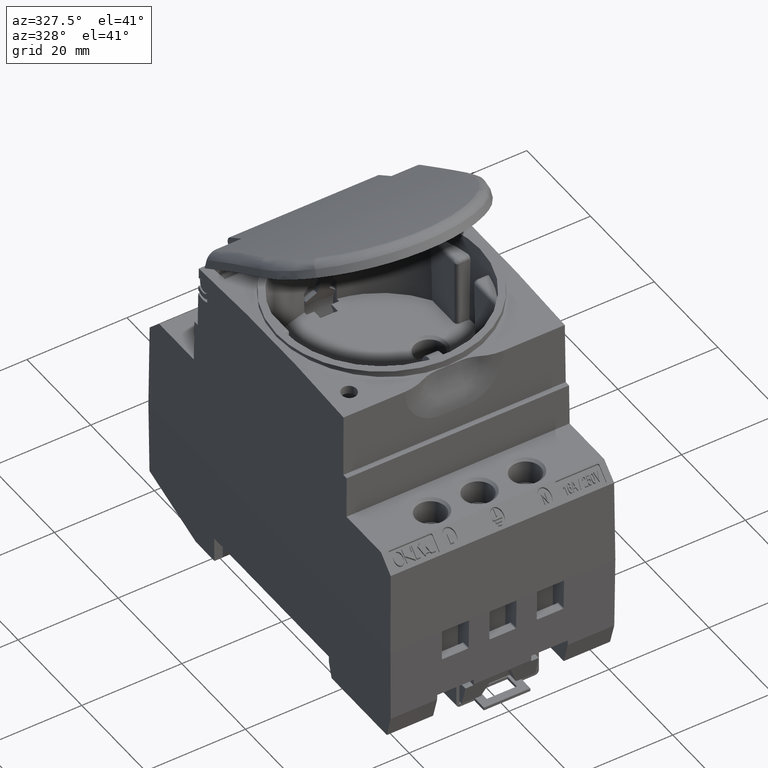
[diagram: clean part render]
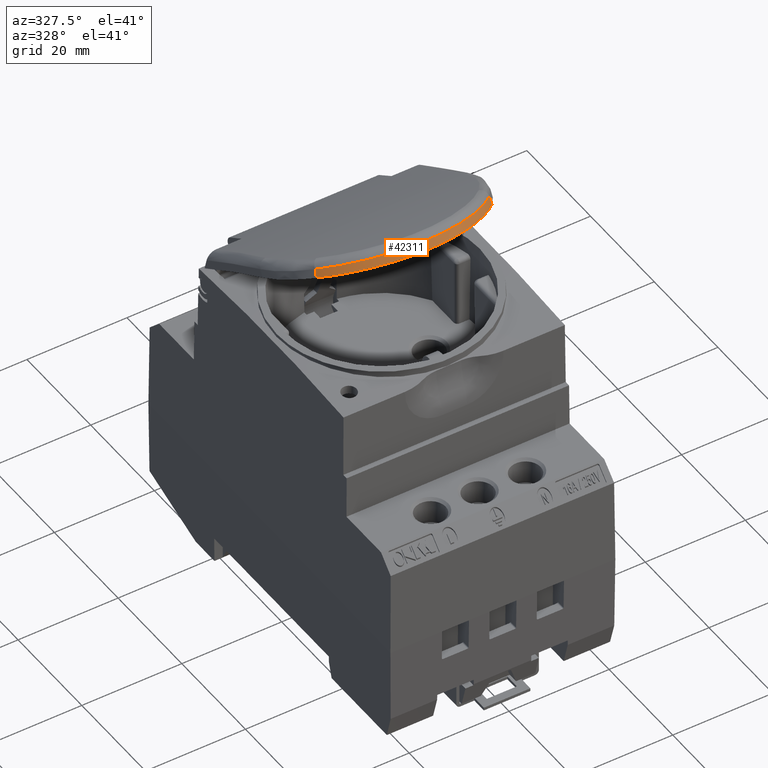
[diagram: same view with one face highlighted and labeled with its STEP entity id]
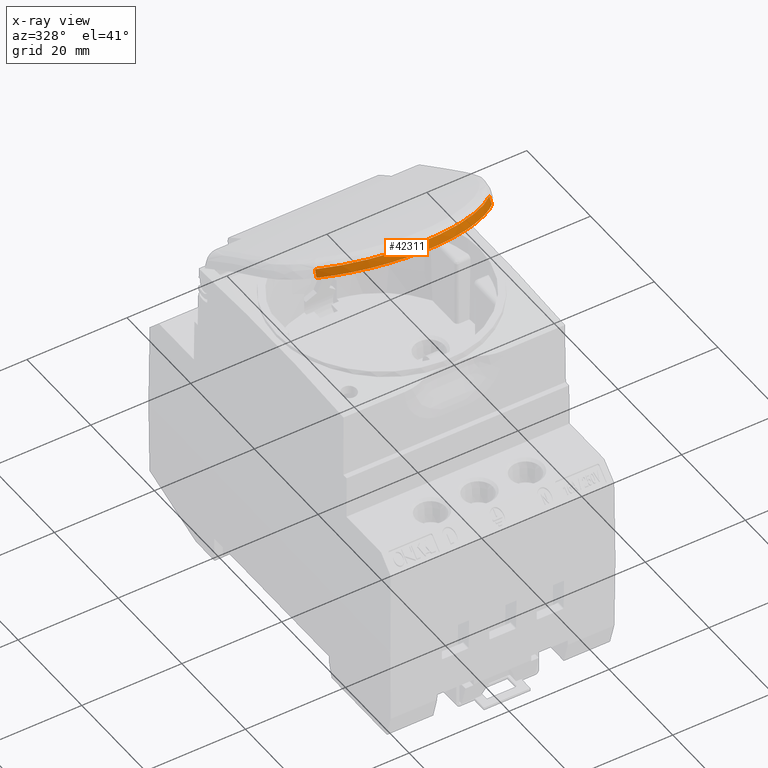
[diagram: x-ray of the same camera — body ghosted, the highlighted face saturated]
A machine part, auxiliary view. The second image highlights one B-rep face of the part: STEP entity #42311.
The next image is the same camera in x-ray: the body ghosted, the highlighted face saturated — about 0% of this face is hidden behind the body in this view.
In plain terms, the highlighted cylindrical surface (partial cylindrical patch) has radius 22.158 mm, axis along (-0, -0.5, -0.866).
Its self-contained STEP definition (entity closure, byte-faithful):
#7675 = CARTESIAN_POINT ( 'NONE',  ( -17.43839991281403100, -6.406244868799487500, 35.04896011352278200 ) ) ;
#7678 = CARTESIAN_POINT ( 'NONE',  ( -17.47729985172660200, -6.619162373726648100, 34.58093211664670700 ) ) ;
#7690 = CARTESIAN_POINT ( 'NONE',  ( -17.55446290469034700, -7.044567572080076400, 33.64462797110912400 ) ) ;
#7722 = CARTESIAN_POINT ( 'NONE',  ( -17.51598798557933600, -6.831936084455147600, 34.11282110015147100 ) ) ;
#7790 = CARTESIAN_POINT ( 'NONE',  ( 17.55446290469020800, -7.044567572080229200, 33.64462797110920200 ) ) ;
#7811 = CARTESIAN_POINT ( 'NONE',  ( 17.47738107177864100, -6.621013908360208900, 34.57751794991350600 ) ) ;
#7820 = CARTESIAN_POINT ( 'NONE',  ( 17.43839991281475600, -6.406244868798709500, 35.04896011352235500 ) ) ;
#7835 = CARTESIAN_POINT ( 'NONE',  ( 17.51606838477248800, -6.833784626242709800, 34.10941056595730500 ) ) ;
#7841 = CARTESIAN_POINT ( 'NONE',  ( -14.60505939288947600, -9.846250748564902000, 35.07944971855751200 ) ) ;
#7843 = CARTESIAN_POINT ( 'NONE',  ( -14.21609044970418100, -10.14299974661740400, 35.22916890223559200 ) ) ;
#7844 = CARTESIAN_POINT ( 'NONE',  ( -14.01559191217607200, -10.29111076207343200, 35.30376106467055300 ) ) ;
#7845 = CARTESIAN_POINT ( 'NONE',  ( -10.41475924870612800, -12.44001523457868400, 36.37484680628377000 ) ) ;
#7847 = CARTESIAN_POINT ( 'NONE',  ( -15.89248085834182900, -8.753177875136149300, 34.52400741919677800 ) ) ;
#7848 = CARTESIAN_POINT ( 'NONE',  ( -14.03270803413653100, -10.27859455255903100, 35.29746022018941400 ) ) ;
#7850 = CARTESIAN_POINT ( 'NONE',  ( -14.01545792126314500, -10.29120836656773000, 35.30381019480192600 ) ) ;
#7851 = CARTESIAN_POINT ( 'NONE',  ( -10.16995923771010400, -12.55485724968119100, 36.43144203341206100 ) ) ;
#7852 = CARTESIAN_POINT ( 'NONE',  ( -10.04862389879820000, -12.61091266147393100, 36.45905319183766800 ) ) ;
#7856 = CARTESIAN_POINT ( 'NONE',  ( -16.32781108973706500, -8.342582989788567700, 34.31394311986873200 ) ) ;
#7857 = CARTESIAN_POINT ( 'NONE',  ( -15.90913919849195100, -8.737870338265663500, 34.51619026455964700 ) ) ;
#7858 = CARTESIAN_POINT ( 'NONE',  ( -15.89748912309146400, -8.748578709424730700, 34.52165885517015200 ) ) ;
#7859 = CARTESIAN_POINT ( 'NONE',  ( -14.01831055558528000, -10.28912380030868300, 35.30276081490675500 ) ) ;
#7860 = CARTESIAN_POINT ( 'NONE',  ( -12.50390702947358800, -11.32089219309065900, 35.82025973054375400 ) ) ;
#7861 = CARTESIAN_POINT ( 'NONE',  ( -11.43466783285035500, -11.92394323018314300, 36.11980673805706500 ) ) ;
#7862 = CARTESIAN_POINT ( 'NONE',  ( -17.13332737876687900, -7.521237604279781100, 33.89151154930793600 ) ) ;
#7863 = CARTESIAN_POINT ( 'NONE',  ( -9.839668752446650400, -12.70496796308064400, 36.50535154944681400 ) ) ;
#7864 = CARTESIAN_POINT ( 'NONE',  ( -9.805129519050174400, -12.72031283790986400, 36.51290285846702200 ) ) ;
#7865 = CARTESIAN_POINT ( 'NONE',  ( -9.776960905406166800, -12.73278601579450100, 36.51904058547260200 ) ) ;
#7866 = CARTESIAN_POINT ( 'NONE',  ( -8.965808476128046300, -13.09114845452755700, 36.69537371387826100 ) ) ;
#7867 = CARTESIAN_POINT ( 'NONE',  ( -8.160827299685042400, -13.39257958438998500, 36.84293224038502500 ) ) ;
#7868 = CARTESIAN_POINT ( 'NONE',  ( -14.09588095743675300, -10.23221549610505000, 35.27410916602070000 ) ) ;
#7870 = CARTESIAN_POINT ( 'NONE',  ( -16.71960146736032000, -7.952884386220907800, 34.11384890289247800 ) ) ;
#7875 = CARTESIAN_POINT ( 'NONE',  ( -14.46272386213601600, -9.956349068953624500, 35.13504459890894800 ) ) ;
#7876 = CARTESIAN_POINT ( 'NONE',  ( -14.13486550690533700, -10.20337996762251900, 35.25958650380332000 ) ) ;
#7877 = CARTESIAN_POINT ( 'NONE',  ( -13.25137174261349800, -10.84928420682836700, 35.58474398289928300 ) ) ;
#7878 = CARTESIAN_POINT ( 'NONE',  ( -16.57027483728104800, -8.104567538970421500, 34.19183936376934700 ) ) ;
#7879 = CARTESIAN_POINT ( 'NONE',  ( -16.20195918762597000, -8.464210126244104500, 34.37627262653876400 ) ) ;
#7880 = CARTESIAN_POINT ( 'NONE',  ( -10.58079974088486500, -12.35981252827774100, 36.33528623818883600 ) ) ;
#7881 = CARTESIAN_POINT ( 'NONE',  ( -9.908993989031962700, -12.67399581381294400, 36.49010819427787300 ) ) ;
#7883 = CARTESIAN_POINT ( 'NONE',  ( -15.45823933971949100, -9.151428028624286200, 34.72735496080297000 ) ) ;
#7885 = CARTESIAN_POINT ( 'NONE',  ( -9.790353531346498900, -12.72685907940979900, 36.51612412618662500 ) ) ;
#7886 = CARTESIAN_POINT ( 'NONE',  ( -9.780508782044320200, -12.73121655781723200, 36.51826831090694700 ) ) ;
#7887 = CARTESIAN_POINT ( 'NONE',  ( -17.55446290469034700, -7.044567572080076400, 33.64462797110912400 ) ) ;
#7888 = CARTESIAN_POINT ( 'NONE',  ( -6.966958919358628300, -13.77164099697503200, 37.02786084338945500 ) ) ;
#7889 = CARTESIAN_POINT ( 'NONE',  ( -6.571238998412428400, -13.88582785648221400, 37.08344355903374600 ) ) ;
#7890 = CARTESIAN_POINT ( 'NONE',  ( -14.02260251018545900, -10.28598665840422700, 35.30118155212823400 ) ) ;
#7891 = CARTESIAN_POINT ( 'NONE',  ( -11.08680170418981700, -12.10758540645025000, 36.21071207495990100 ) ) ;
#7892 = CARTESIAN_POINT ( 'NONE',  ( -15.07908464429034900, -9.467788934410203100, 34.88792568324111400 ) ) ;
#7893 = CARTESIAN_POINT ( 'NONE',  ( -17.36356629126986900, -7.264795457441061400, 33.75886727834868100 ) ) ;
#7895 = CARTESIAN_POINT ( 'NONE',  ( -15.96698928048154500, -8.684512570889564700, 34.48893464875390400 ) ) ;
#7896 = CARTESIAN_POINT ( 'NONE',  ( -14.27458286813472000, -10.09913508984520700, 35.20706140030218700 ) ) ;
#7897 = CARTESIAN_POINT ( 'NONE',  ( -14.05328246088264300, -10.26352142027662500, 35.28987173255804100 ) ) ;
#7898 = CARTESIAN_POINT ( 'NONE',  ( -15.92657551314403500, -8.721825532903885400, 34.50799579389784800 ) ) ;
#7899 = CARTESIAN_POINT ( 'NONE',  ( -16.04673791663374500, -8.610391533906122800, 34.45105251690720400 ) ) ;
#7900 = CARTESIAN_POINT ( 'NONE',  ( -5.108017573426414200, -14.24301667906514400, 37.25692656923915500 ) ) ;
#7901 = CARTESIAN_POINT ( 'NONE',  ( -4.173182702742444400, -14.43901772336636700, 37.35199379285965900 ) ) ;
#7902 = CARTESIAN_POINT ( 'NONE',  ( 4.926327018914065500, -14.28112019524110300, 37.27540812595967200 ) ) ;
#7903 = CARTESIAN_POINT ( 'NONE',  ( 9.081962607297029400, -13.02870738830716500, 36.66449965122975400 ) ) ;
#7904 = CARTESIAN_POINT ( 'NONE',  ( 10.41581504556990500, -12.45001444409428600, 36.37989339431420200 ) ) ;
#7905 = CARTESIAN_POINT ( 'NONE',  ( 12.16869384615155900, -11.50946424756880400, 35.91392034432069400 ) ) ;
#7906 = CARTESIAN_POINT ( 'NONE',  ( 12.53499857837653800, -11.28971865860787600, 35.80443960922220700 ) ) ;
#7907 = CARTESIAN_POINT ( 'NONE',  ( 13.95763258338752000, -10.33335601181741100, 35.32502565666046500 ) ) ;
#7908 = CARTESIAN_POINT ( 'NONE',  ( 3.356565128413387700, -14.55448756951459500, 37.40786145784517200 ) ) ;
#7909 = CARTESIAN_POINT ( 'NONE',  ( 13.87416445245403900, -10.39375651205328000, 35.35541765922305800 ) ) ;
#7910 = CARTESIAN_POINT ( 'NONE',  ( 14.03982229712920200, -10.27338161343618900, 35.29483533686480000 ) ) ;
#7911 = CARTESIAN_POINT ( 'NONE',  ( 14.21711326287385400, -10.14345599411029900, 35.22941842919036800 ) ) ;
#7912 = CARTESIAN_POINT ( 'NONE',  ( 9.433719559434649700, -12.88176976309207700, 36.59231245519426800 ) ) ;
#7913 = CARTESIAN_POINT ( 'NONE',  ( 14.46577016068406800, -9.957917136168942900, 35.13597404296842800 ) ) ;
#7914 = CARTESIAN_POINT ( 'NONE',  ( 13.28169862085883300, -10.80635411942852800, 35.56262117710544900 ) ) ;
#7915 = CARTESIAN_POINT ( 'NONE',  ( 15.38778022759788800, -9.202430790135997200, 34.75298633025261100 ) ) ;
#7916 = CARTESIAN_POINT ( 'NONE',  ( 14.02029688532927700, -10.28767445134746700, 35.30203130279777200 ) ) ;
#7917 = CARTESIAN_POINT ( 'NONE',  ( 14.02925330977930700, -10.28112120936568100, 35.29873203964939400 ) ) ;
#7918 = CARTESIAN_POINT ( 'NONE',  ( 4.665076775693321100, -14.33377088564456700, 37.30093980247070100 ) ) ;
#7919 = CARTESIAN_POINT ( 'NONE',  ( 6.586603164158469200, -13.89304824701968300, 37.08709646835010400 ) ) ;
#7920 = CARTESIAN_POINT ( 'NONE',  ( -5.059796711842257500, -14.25327052198924500, 37.26190033537094600 ) ) ;
#7921 = CARTESIAN_POINT ( 'NONE',  ( 9.697603670119995900, -12.76772755615657800, 36.53623217932892700 ) ) ;
#7922 = CARTESIAN_POINT ( 'NONE',  ( -3.330758509613496200, -14.56904161522526800, 37.41491869429701500 ) ) ;
#7923 = CARTESIAN_POINT ( 'NONE',  ( 9.760435351473393700, -12.74008507141555300, 36.52263211509971100 ) ) ;
#7924 = CARTESIAN_POINT ( 'NONE',  ( 11.09587431401553900, -12.11595414837821000, 36.21520691230641400 ) ) ;
#7925 = CARTESIAN_POINT ( 'NONE',  ( 15.10760357851287900, -9.441032435600835300, 34.87425282465113700 ) ) ;
#7926 = CARTESIAN_POINT ( 'NONE',  ( 15.48475111322289900, -9.118481153371433800, 34.71027442970323300 ) ) ;
#7927 = CARTESIAN_POINT ( 'NONE',  ( 8.179258586454274400, -13.37462357486543500, 36.83404082816787900 ) ) ;
#7928 = CARTESIAN_POINT ( 'NONE',  ( 9.773001646379663400, -12.73453613832222700, 36.51990176150457000 ) ) ;
#7929 = CARTESIAN_POINT ( 'NONE',  ( -2.070221323588468600, -14.69776395290308300, 37.47712241059100100 ) ) ;
#7930 = CARTESIAN_POINT ( 'NONE',  ( 13.09385388491815600, -10.93085111252716500, 35.62498038465942300 ) ) ;
#7931 = CARTESIAN_POINT ( 'NONE',  ( 4.847973810528175800, -14.29719336537351100, 37.28320326274834400 ) ) ;
#7932 = CARTESIAN_POINT ( 'NONE',  ( 14.03522467031084100, -10.27674977725171800, 35.29653116157791700 ) ) ;
#7933 = CARTESIAN_POINT ( 'NONE',  ( 0.8464863165460172500, -14.78100401321412200, 37.51725608422434300 ) ) ;
#7934 = CARTESIAN_POINT ( 'NONE',  ( 4.299022901218013000, -14.40322563782860500, 37.33460782855672700 ) ) ;
#7935 = CARTESIAN_POINT ( 'NONE',  ( 1.681609925988718300, -14.73841957532141000, 37.49676907003619400 ) ) ;
#7936 = CARTESIAN_POINT ( 'NONE',  ( 15.63520598345916000, -8.985645852834931400, 34.64260615276581500 ) ) ;
#7937 = CARTESIAN_POINT ( 'NONE',  ( -5.689272078321725900, -14.11276704563082200, 37.19372663602365500 ) ) ;
#7938 = CARTESIAN_POINT ( 'NONE',  ( -1.650551224208642600, -14.72962883081239100, 37.49249863330425100 ) ) ;
#7939 = CARTESIAN_POINT ( 'NONE',  ( 5.800504971447627300, -14.09750502630329400, 37.18634583793779300 ) ) ;
#7940 = CARTESIAN_POINT ( 'NONE',  ( 13.56528597747441200, -10.61194512982409700, 35.46507006451378200 ) ) ;
#7941 = CARTESIAN_POINT ( 'NONE',  ( 3.984925432893765300, -14.45643568966255900, 37.36038374441353900 ) ) ;
#7942 = CARTESIAN_POINT ( 'NONE',  ( 14.93515995395191400, -9.582450782680529900, 34.94594606506665000 ) ) ;
#7943 = CARTESIAN_POINT ( 'NONE',  ( -5.180395644621736300, -14.22751059157353000, 37.24940486670616500 ) ) ;
#7944 = CARTESIAN_POINT ( 'NONE',  ( 9.741585879252184600, -12.74839857776692800, 36.52672263911468100 ) ) ;
#7945 = CARTESIAN_POINT ( 'NONE',  ( 15.71168238121956800, -8.917500235015746000, 34.60787175984958700 ) ) ;
#7946 = CARTESIAN_POINT ( 'NONE',  ( -5.349601145759932800, -14.19044844634308300, 37.23142453739432500 ) ) ;
#7947 = CARTESIAN_POINT ( 'NONE',  ( 9.609639634674056900, -12.80610910101956400, 36.55511142768673900 ) ) ;
#7948 = CARTESIAN_POINT ( 'NONE',  ( 13.70753404236001100, -10.51282487463938000, 35.41529149907090400 ) ) ;
#7949 = CARTESIAN_POINT ( 'NONE',  ( 13.99940290728961400, -10.30293802396260700, 35.30971521614720400 ) ) ;
#7950 = CARTESIAN_POINT ( 'NONE',  ( 15.80300241476223100, -8.834907752531158600, 34.56573514452136200 ) ) ;
#7951 = CARTESIAN_POINT ( 'NONE',  ( 15.84917524857639900, -8.792830864953069500, 34.54425873777149300 ) ) ;
#7952 = CARTESIAN_POINT ( 'NONE',  ( 4.978555170927688100, -14.27031643817885600, 37.27016827043326000 ) ) ;
#7953 = CARTESIAN_POINT ( 'NONE',  ( 15.86907224105367600, -8.774629736076970900, 34.53496659651387500 ) ) ;
#7954 = CARTESIAN_POINT ( 'NONE',  ( 15.88236090294107700, -8.762458177541317300, 34.52875222976760500 ) ) ;
#7955 = CARTESIAN_POINT ( 'NONE',  ( 7.779409206541023600, -13.51335133031512600, 36.90184864166884900 ) ) ;
#7956 = CARTESIAN_POINT ( 'NONE',  ( -5.982462374114799500, -14.03997553050948000, 37.15837276763347300 ) ) ;
#7957 = CARTESIAN_POINT ( 'NONE',  ( -5.037824078064998500, -14.25791115520755200, 37.26415126374833200 ) ) ;
#7958 = CARTESIAN_POINT ( 'NONE',  ( -0.8136455987566084700, -14.77172825175093400, 37.51279695949094900 ) ) ;
#7959 = CARTESIAN_POINT ( 'NONE',  ( 2.937439758765304300, -14.60869561150009200, 37.43407981226844300 ) ) ;
#7960 = CARTESIAN_POINT ( 'NONE',  ( 8.780773103785211500, -13.14722919995656800, 36.72262955976366800 ) ) ;
#7961 = CARTESIAN_POINT ( 'NONE',  ( -0.3948424894171303500, -14.78196177863130800, 37.51771859053322100 ) ) ;
#7962 = CARTESIAN_POINT ( 'NONE',  ( 9.780644100801875900, -12.73115670695141500, 36.51823884551847500 ) ) ;
#7963 = CARTESIAN_POINT ( 'NONE',  ( 5.006718002224971500, -14.26443878052970500, 37.26731743364516800 ) ) ;
#7964 = CARTESIAN_POINT ( 'NONE',  ( 16.36138729206416200, -7.555134936007264400, 35.65104942665977500 ) ) ;
#7968 = CARTESIAN_POINT ( 'NONE',  ( -16.39739616346137300, -7.582459438901820700, 35.66757335949084500 ) ) ;
#7969 = CARTESIAN_POINT ( 'NONE',  ( 16.91785293157159500, -6.994403119138266500, 35.35829354086526200 ) ) ;
#7974 = CARTESIAN_POINT ( 'NONE',  ( 17.43839991281475600, -6.406244868798709500, 35.04896011352235500 ) ) ;
#7975 = CARTESIAN_POINT ( 'NONE',  ( -17.43839991281403100, -6.406244868799487500, 35.04896011352278200 ) ) ;
#7977 = CARTESIAN_POINT ( 'NONE',  ( -11.17936802491840500, -11.28106668698597100, 37.56411792006487400 ) ) ;
#7978 = CARTESIAN_POINT ( 'NONE',  ( 17.17072053910552800, -7.487271966622815400, 33.87427301966219800 ) ) ;
#7979 = CARTESIAN_POINT ( 'NONE',  ( -8.183216398076117700, -12.58632925208956100, 38.22080004859033400 ) ) ;
#7980 = CARTESIAN_POINT ( 'NONE',  ( 15.88990726891444500, -8.755536364567817000, 34.52521789666032200 ) ) ;
#7982 = CARTESIAN_POINT ( 'NONE',  ( -13.28281759073047400, -10.03598481064364900, 36.93118365908399200 ) ) ;
#7983 = CARTESIAN_POINT ( 'NONE',  ( -8.950551401949871500, -12.29836540581159100, 38.07656123301791200 ) ) ;
#7984 = CARTESIAN_POINT ( 'NONE',  ( -6.611880996004310300, -13.08508444836141900, 38.46998704701777400 ) ) ;
#7990 = CARTESIAN_POINT ( 'NONE',  ( -10.44862509340396000, -11.64573012647974800, 37.74821693956024400 ) ) ;
#7992 = CARTESIAN_POINT ( 'NONE',  ( -5.806801878067011200, -13.29610896747620300, 38.57505013654908100 ) ) ;
#7993 = CARTESIAN_POINT ( 'NONE',  ( 3.330705414681258200, -13.76474295249938100, 38.80783461188992300 ) ) ;
#7994 = CARTESIAN_POINT ( 'NONE',  ( 5.779317278240095700, -13.30241646592283200, 38.57818787881524300 ) ) ;
#7995 = CARTESIAN_POINT ( 'NONE',  ( 6.578506071596768500, -13.09441844340536300, 38.47463991849286200 ) ) ;
#7997 = CARTESIAN_POINT ( 'NONE',  ( 8.151309546352580400, -12.59766501926933900, 38.22647372885094800 ) ) ;
#7998 = CARTESIAN_POINT ( 'NONE',  ( 8.927081709376627900, -12.30797062574163000, 38.08138507618696200 ) ) ;
#8000 = CARTESIAN_POINT ( 'NONE',  ( 11.20060221676963500, -11.31935243287818000, 37.58403152057199000 ) ) ;
#8001 = CARTESIAN_POINT ( 'NONE',  ( 12.60579401534978300, -10.52066338782714000, 37.17969379009237200 ) ) ;
#8003 = CARTESIAN_POINT ( 'NONE',  ( 16.63529836890490200, -8.071061781693798000, 34.17569608800540200 ) ) ;
#8004 = CARTESIAN_POINT ( 'NONE',  ( 17.55446290469020800, -7.044567572080229200, 33.64462797110920200 ) ) ;
#8006 = CARTESIAN_POINT ( 'NONE',  ( 0.8163646946095972600, -13.97680996387977900, 38.91289014938077900 ) ) ;
#8008 = CARTESIAN_POINT ( 'NONE',  ( -15.22649342636376700, -8.636046702853125400, 36.21317746070949500 ) ) ;
#8010 = CARTESIAN_POINT ( 'NONE',  ( 4.155415550332591600, -13.63757416293205800, 38.74478326195023200 ) ) ;
#8012 = CARTESIAN_POINT ( 'NONE',  ( -1.685043722063736600, -13.97504210908271600, 38.91201500068571300 ) ) ;
#8014 = CARTESIAN_POINT ( 'NONE',  ( -12.60289622626023800, -10.47257307857073600, 37.15376801580936200 ) ) ;
#8016 = CARTESIAN_POINT ( 'NONE',  ( -3.340989112571668900, -13.80691376871478600, 38.82896108934249900 ) ) ;
#8019 = CARTESIAN_POINT ( 'NONE',  ( 1.654816669766288100, -13.93509811214957700, 38.89225251207623300 ) ) ;
#8020 = CARTESIAN_POINT ( 'NONE',  ( 14.55319678298878300, -9.122420373716909800, 36.46266666324847700 ) ) ;
#8021 = CARTESIAN_POINT ( 'NONE',  ( 15.17676619619025000, -8.621356076394066600, 36.20438601382493000 ) ) ;
#9040 = CARTESIAN_POINT ( 'NONE',  ( -17.43839991281403100, -6.406244868799487500, 35.04896011352278200 ) ) ;
#12932 = CARTESIAN_POINT ( 'NONE',  ( -17.55446290469034700, -7.044567572080076400, 33.64462797110912400 ) ) ;
#12953 = CARTESIAN_POINT ( 'NONE',  ( 17.55446290469020800, -7.044567572080229200, 33.64462797110920200 ) ) ;
#12975 = CARTESIAN_POINT ( 'NONE',  ( 17.43839991281475600, -6.406244868798709500, 35.04896011352235500 ) ) ;
#22013 = AXIS2_PLACEMENT_3D ( 'NONE', #63304, #63308, #63327 ) ;
#28324 = EDGE_LOOP ( 'NONE', ( #34864, #34841, #34912, #34947 ) ) ;
#34151 = EDGE_CURVE ( 'NONE', #42507, #42522, #58137, .T. ) ;
#34180 = EDGE_CURVE ( 'NONE', #42548, #42527, #58097, .T. ) ;
#34190 = EDGE_CURVE ( 'NONE', #42522, #42527, #58101, .T. ) ;
#34192 = EDGE_CURVE ( 'NONE', #42507, #42548, #58103, .T. ) ;
#34841 = ORIENTED_EDGE ( 'NONE', *, *, #34190, .T. ) ;
#34864 = ORIENTED_EDGE ( 'NONE', *, *, #34151, .T. ) ;
#34912 = ORIENTED_EDGE ( 'NONE', *, *, #34180, .F. ) ;
#34947 = ORIENTED_EDGE ( 'NONE', *, *, #34192, .F. ) ;
#42311 = ADVANCED_FACE ( 'NONE', ( #63278 ), #63320, .T. ) ;
#42507 = VERTEX_POINT ( 'NONE', #9040 ) ;
#42522 = VERTEX_POINT ( 'NONE', #12932 ) ;
#42527 = VERTEX_POINT ( 'NONE', #12953 ) ;
#42548 = VERTEX_POINT ( 'NONE', #12975 ) ;
#58097 = B_SPLINE_CURVE_WITH_KNOTS ( 'NONE', 3,
 ( #7820, #7811, #7835, #7790 ),
 .UNSPECIFIED., .F., .F.,
 ( 4, 4 ),
 ( 0.0000000000000000000, 1.000000000000000000 ),
 .UNSPECIFIED. ) ;
#58101 = B_SPLINE_CURVE_WITH_KNOTS ( 'NONE', 3,
 ( #7887, #7893, #7862, #7870, #7878, #7856, #7879, #7899, #7895, #7898, #7857, #7858, #7847, #7883, #7892, #7841, #7875, #7896, #7843, #7876, #7868, #7897, #7848, #7890, #7859, #7850, #7844, #7877, #7860, #7861, #7891, #7880, #7845, #7851, #7852, #7881, #7863, #7864, #7885, #7886, #7865, #7866, #7867, #7888, #7889, #7956, #7937, #7946, #7943, #7900, #7920, #7957, #7901, #7922, #7929, #7938, #7958, #7961, #7933, #7935, #7959, #7908, #7941, #7934, #7918, #7931, #7902, #7952, #7963, #7939, #7919, #7955, #7927, #7960, #7903, #7912, #7947, #7921, #7944, #7923, #7928, #7962, #7904, #7924, #7905, #7906, #7930, #7914, #7940, #7948, #7909, #7907, #7949, #7916, #7917, #7932, #7910, #7911, #7913, #7942, #7925, #7915, #7926, #7936, #7945, #7950, #7951, #7953, #7954, #7980, #8003, #7978, #8004 ),
 .UNSPECIFIED., .F., .F.,
 ( 4, 2, 2, 1, 1, 1, 1, 2, 2, 2, 2, 2, 1, 1, 1, 1, 2, 2, 2, 2, 2, 1, 1, 1, 1, 2, 2, 2, 2, 1, 1, 1, 2, 2, 2, 2, 2, 2, 2, 1, 1, 1, 2, 2, 2, 2, 1, 1, 1, 1, 1, 2, 2, 2, 2, 2, 1, 1, 1, 1, 1, 2, 2, 2, 2, 2, 1, 1, 1, 2, 2, 4 ),
 ( 0.0000000000000000000, 0.03125000000001196300, 0.04687500000001792300, 0.05468750000002090700, 0.05859375000002235700, 0.06054687500002312000, 0.06152343750002360600, 0.06201171875002378000, 0.06250000000002395300, 0.09375000000002924000, 0.1093750000000318500, 0.1171875000000332100, 0.1210937500000338500, 0.1230468750000341800, 0.1240234375000343200, 0.1245117187500342600, 0.1247558593750342600, 0.1250000000000342800, 0.1875000000000273100, 0.2187500000000238100, 0.2343750000000219000, 0.2421875000000210100, 0.2460937500000207100, 0.2480468750000206200, 0.2490234375000205100, 0.2495117187500203400, 0.2500000000000202100, 0.3125000000000131600, 0.3437500000000096000, 0.3593750000000078800, 0.3671875000000069900, 0.3710937500000065500, 0.3730468750000063300, 0.3750000000000060500, 0.4374999999999969500, 0.4687499999999923900, 0.4999999999999879000, 0.5624999999999787900, 0.5937499999999742400, 0.6093749999999719100, 0.6171874999999706900, 0.6210937499999702500, 0.6230468749999699100, 0.6249999999999696900, 0.6874999999999611400, 0.7187499999999569200, 0.7343749999999549200, 0.7421874999999539300, 0.7460937499999534800, 0.7480468749999532600, 0.7490234374999531500, 0.7495117187499530400, 0.7499999999999530400, 0.8124999999999558100, 0.8437499999999572600, 0.8593749999999580300, 0.8671874999999583700, 0.8710937499999585900, 0.8730468749999585900, 0.8740234374999587000, 0.8745117187499587000, 0.8747558593749587000, 0.8749999999999587000, 0.9062499999999682500, 0.9218749999999729100, 0.9296874999999753500, 0.9335937499999766900, 0.9355468749999773500, 0.9365234374999776800, 0.9370117187499780200, 0.9374999999999782400, 1.000000000000000000 ),
 .UNSPECIFIED. ) ;
#58103 = B_SPLINE_CURVE_WITH_KNOTS ( 'NONE', 3,
 ( #7975, #7968, #8008, #7982, #8014, #7977, #7990, #7983, #7979, #7984, #7992, #8016, #8012, #8006, #8019, #7993, #8010, #7994, #7995, #7997, #7998, #8000, #8001, #8020, #8021, #7964, #7969, #7974 ),
 .UNSPECIFIED., .F., .F.,
 ( 4, 2, 2, 2, 2, 2, 2, 2, 2, 2, 2, 2, 2, 4 ),
 ( 0.0000000000000000000, 0.1250000000000000000, 0.1875000000000000000, 0.2500000000000000600, 0.3125000000000000600, 0.3750000000000000600, 0.5000000000000001100, 0.5625000000000001100, 0.6250000000000000000, 0.6875000000000000000, 0.7500000000000000000, 0.8750000000000000000, 0.9375000000000001100, 1.000000000000000000 ),
 .UNSPECIFIED. ) ;
#58137 = B_SPLINE_CURVE_WITH_KNOTS ( 'NONE', 3,
 ( #7675, #7678, #7722, #7690 ),
 .UNSPECIFIED., .F., .F.,
 ( 4, 4 ),
 ( 0.0000000000000000000, 1.000000000000000000 ),
 .UNSPECIFIED. ) ;
#63278 = FACE_OUTER_BOUND ( 'NONE', #28324, .T. ) ;
#63304 = CARTESIAN_POINT ( 'NONE',  ( -2.159747641607305000E-015, 11.26277576309803600, 38.31181411552370300 ) ) ;
#63308 = DIRECTION ( 'NONE',  ( -7.888609052210117200E-031, -0.4999999999998823200, -0.8660254037845066500 ) ) ;
#63320 = CYLINDRICAL_SURFACE ( 'NONE', #22013, 22.15801110545255200 ) ;
#63327 = DIRECTION ( 'NONE',  ( 0.0000000000000000000, 0.8660254037845065400, -0.4999999999998823200 ) ) ;